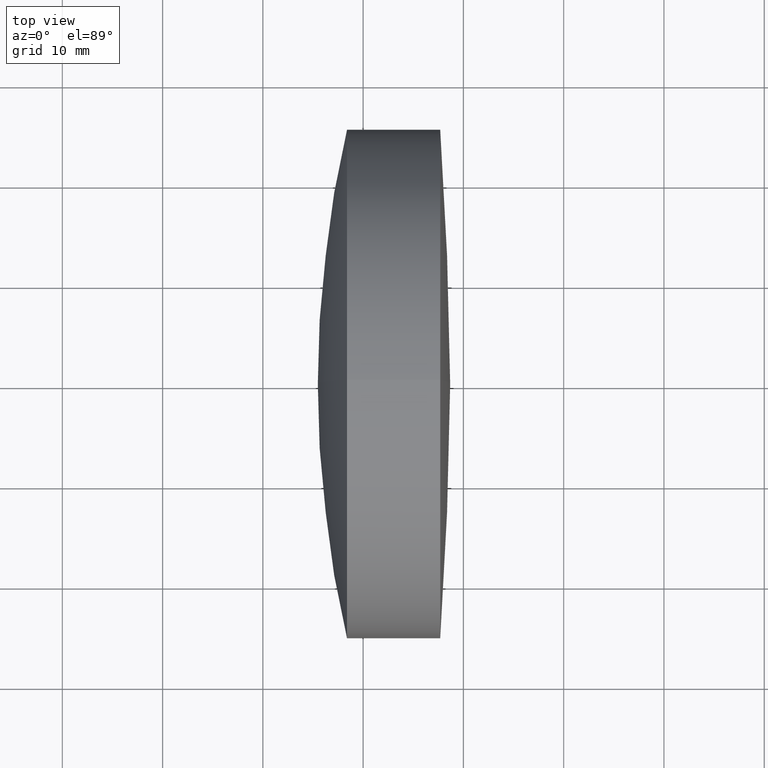
[diagram: clean part render]
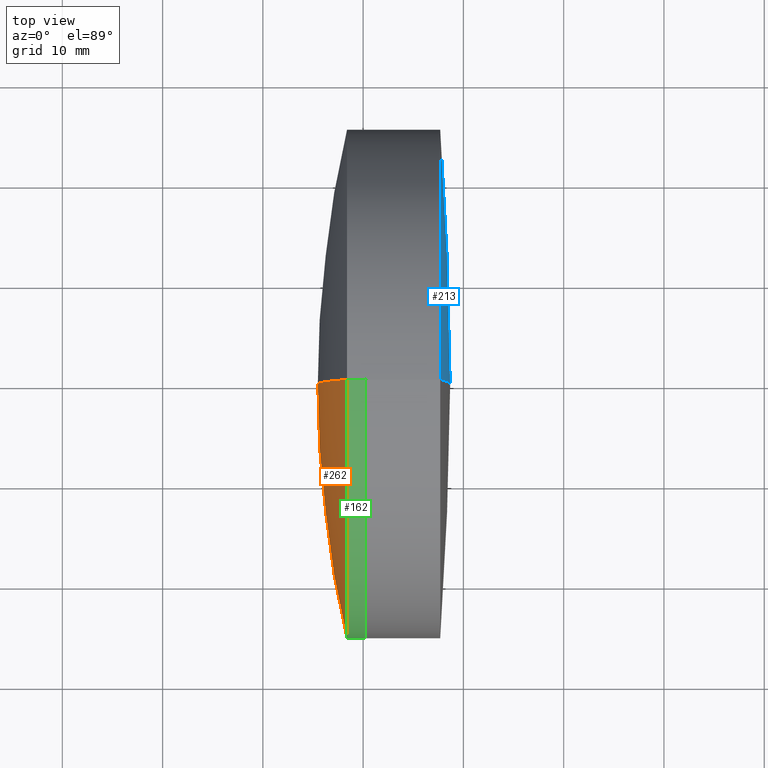
[diagram: same view with three faces highlighted in distinct colors, each labeled with its STEP entity id]
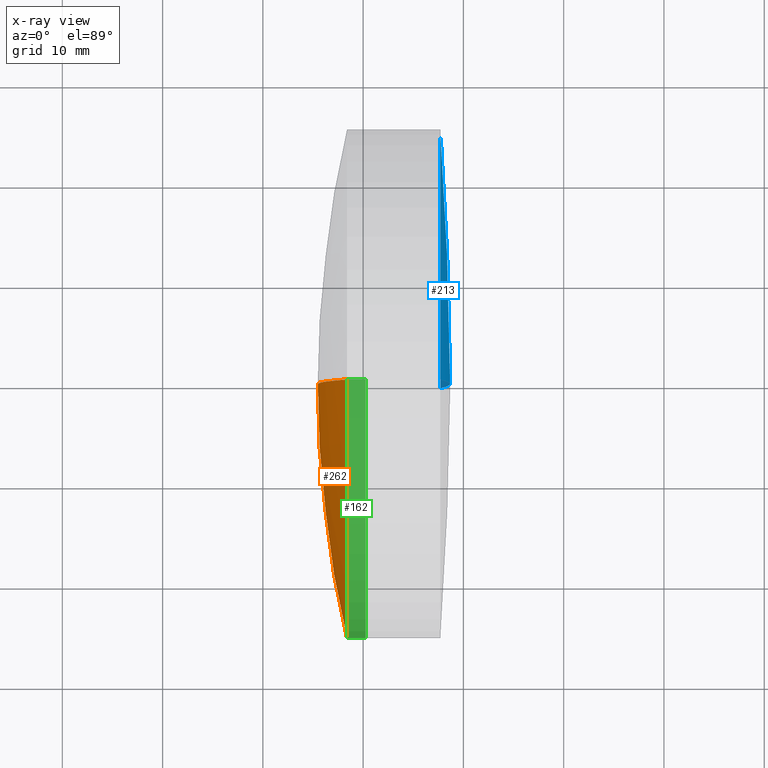
[diagram: x-ray of the same camera — body ghosted, the three highlighted faces saturated]
A machine part, top view with three faces highlighted in distinct colors.
The next image is the same camera in x-ray (body ghosted, the three faces saturated) — at least one of them is partly hidden behind the body in this view.
Their STEP definitions:

[orange] entity #262 — the highlighted spherical surface has radius 112.2 mm.
#7 = CARTESIAN_POINT ( 'NONE',  ( 657.6805592743230600, 0.0000000000000000000, -8.998188785850827300E-015 ) ) ;
#15 = EDGE_CURVE ( 'NONE', #117, #81, #157, .T. ) ;
#22 = CARTESIAN_POINT ( 'NONE',  ( 545.4805592743229000, 0.0000000000000000000, -2.127920242634172300E-015 ) ) ;
#29 = DIRECTION ( 'NONE',  ( 0.0000000000000000000, -1.224646799147353500E-016, 1.000000000000000000 ) ) ;
#33 = AXIS2_PLACEMENT_3D ( 'NONE', #315, #67, #263 ) ;
#37 = ORIENTED_EDGE ( 'NONE', *, *, #207, .F. ) ;
#40 = CARTESIAN_POINT ( 'NONE',  ( 548.3934145591277900, 0.0000000000000000000, 0.0000000000000000000 ) ) ;
#49 = VERTEX_POINT ( 'NONE', #22 ) ;
#67 = DIRECTION ( 'NONE',  ( 0.0000000000000000000, 1.000000000000000000, 0.0000000000000000000 ) ) ;
#71 = FACE_OUTER_BOUND ( 'NONE', #209, .T. ) ;
#73 = ORIENTED_EDGE ( 'NONE', *, *, #205, .T. ) ;
#74 = AXIS2_PLACEMENT_3D ( 'NONE', #85, #299, #29 ) ;
#81 = VERTEX_POINT ( 'NONE', #226 ) ;
#85 = CARTESIAN_POINT ( 'NONE',  ( 657.6805592743230600, 0.0000000000000000000, -8.998188785850827300E-015 ) ) ;
#92 = CIRCLE ( 'NONE', #74, 112.2000000000000600 ) ;
#117 = VERTEX_POINT ( 'NONE', #258 ) ;
#157 = CIRCLE ( 'NONE', #264, 25.39999999999998800 ) ;
#161 = SPHERICAL_SURFACE ( 'NONE', #33, 112.2000000000000600 ) ;
#182 = DIRECTION ( 'NONE',  ( 0.0000000000000000000, -1.000000000000000000, 0.0000000000000000000 ) ) ;
#190 = ORIENTED_EDGE ( 'NONE', *, *, #15, .T. ) ;
#205 = EDGE_CURVE ( 'NONE', #81, #49, #329, .T. ) ;
#207 = EDGE_CURVE ( 'NONE', #117, #49, #92, .T. ) ;
#209 = EDGE_LOOP ( 'NONE', ( #37, #190, #73 ) ) ;
#219 = DIRECTION ( 'NONE',  ( -1.000000000000000000, -0.0000000000000000000, -0.0000000000000000000 ) ) ;
#226 = CARTESIAN_POINT ( 'NONE',  ( 548.3934145591277900, 0.0000000000000000000, 25.39999999999999100 ) ) ;
#258 = CARTESIAN_POINT ( 'NONE',  ( 548.3934145591277900, 3.110602869834276500E-015, -25.40000000000000600 ) ) ;
#261 = DIRECTION ( 'NONE',  ( 0.0000000000000000000, 0.0000000000000000000, 1.000000000000000000 ) ) ;
#262 = ADVANCED_FACE ( 'NONE', ( #71 ), #161, .T. ) ;
#263 = DIRECTION ( 'NONE',  ( 0.0000000000000000000, 0.0000000000000000000, 1.000000000000000000 ) ) ;
#264 = AXIS2_PLACEMENT_3D ( 'NONE', #40, #219, #261 ) ;
#299 = DIRECTION ( 'NONE',  ( -0.0000000000000000000, 1.000000000000000000, 1.224646799147353200E-016 ) ) ;
#313 = AXIS2_PLACEMENT_3D ( 'NONE', #7, #182, #332 ) ;
#315 = CARTESIAN_POINT ( 'NONE',  ( 657.6805592743230600, 0.0000000000000000000, -8.998188785850827300E-015 ) ) ;
#329 = CIRCLE ( 'NONE', #313, 112.2000000000000600 ) ;
#332 = DIRECTION ( 'NONE',  ( 0.0000000000000000000, 0.0000000000000000000, -1.000000000000000000 ) ) ;

[blue] entity #213 — the highlighted spherical surface has radius 325.1 mm.
#11 = SPHERICAL_SURFACE ( 'NONE', #189, 325.1000000000000200 ) ;
#16 = CIRCLE ( 'NONE', #130, 325.1000000000000200 ) ;
#41 = AXIS2_PLACEMENT_3D ( 'NONE', #281, #159, #119 ) ;
#43 = DIRECTION ( 'NONE',  ( 0.0000000000000000000, -1.000000000000000000, 0.0000000000000000000 ) ) ;
#53 = CARTESIAN_POINT ( 'NONE',  ( 557.6867918586409600, 0.0000000000000000000, 25.39999999999997000 ) ) ;
#54 = CARTESIAN_POINT ( 'NONE',  ( 557.6867918586409600, 3.110602869834276100E-015, -25.39999999999997000 ) ) ;
#58 = DIRECTION ( 'NONE',  ( -1.000000000000000000, -0.0000000000000000000, -0.0000000000000000000 ) ) ;
#63 = EDGE_CURVE ( 'NONE', #174, #287, #215, .T. ) ;
#65 = DIRECTION ( 'NONE',  ( 0.0000000000000000000, 0.0000000000000000000, 1.000000000000000000 ) ) ;
#86 = EDGE_CURVE ( 'NONE', #300, #287, #177, .T. ) ;
#89 = EDGE_CURVE ( 'NONE', #174, #300, #16, .T. ) ;
#98 = CARTESIAN_POINT ( 'NONE',  ( 557.6867918586409600, 0.0000000000000000000, 0.0000000000000000000 ) ) ;
#104 = DIRECTION ( 'NONE',  ( 0.0000000000000000000, 0.0000000000000000000, 1.000000000000000000 ) ) ;
#119 = DIRECTION ( 'NONE',  ( 0.0000000000000000000, -1.224646799147353000E-016, 1.000000000000000000 ) ) ;
#130 = AXIS2_PLACEMENT_3D ( 'NONE', #214, #43, #303 ) ;
#133 = CARTESIAN_POINT ( 'NONE',  ( 558.6805592743230600, 0.0000000000000000000, 1.990663372014022500E-014 ) ) ;
#138 = ORIENTED_EDGE ( 'NONE', *, *, #86, .F. ) ;
#146 = DIRECTION ( 'NONE',  ( 0.0000000000000000000, 1.000000000000000000, 0.0000000000000000000 ) ) ;
#159 = DIRECTION ( 'NONE',  ( -0.0000000000000000000, 1.000000000000000000, 1.224646799147353200E-016 ) ) ;
#163 = ORIENTED_EDGE ( 'NONE', *, *, #63, .T. ) ;
#174 = VERTEX_POINT ( 'NONE', #133 ) ;
#177 = CIRCLE ( 'NONE', #252, 25.39999999999997000 ) ;
#178 = ORIENTED_EDGE ( 'NONE', *, *, #89, .F. ) ;
#189 = AXIS2_PLACEMENT_3D ( 'NONE', #275, #146, #65 ) ;
#212 = FACE_OUTER_BOUND ( 'NONE', #270, .T. ) ;
#213 = ADVANCED_FACE ( 'NONE', ( #212 ), #11, .T. ) ;
#214 = CARTESIAN_POINT ( 'NONE',  ( 233.5805592743230400, 0.0000000000000000000, 0.0000000000000000000 ) ) ;
#215 = CIRCLE ( 'NONE', #41, 325.1000000000000200 ) ;
#252 = AXIS2_PLACEMENT_3D ( 'NONE', #98, #58, #104 ) ;
#270 = EDGE_LOOP ( 'NONE', ( #178, #163, #138 ) ) ;
#275 = CARTESIAN_POINT ( 'NONE',  ( 233.5805592743230400, 0.0000000000000000000, 0.0000000000000000000 ) ) ;
#281 = CARTESIAN_POINT ( 'NONE',  ( 233.5805592743230400, 0.0000000000000000000, 0.0000000000000000000 ) ) ;
#287 = VERTEX_POINT ( 'NONE', #54 ) ;
#300 = VERTEX_POINT ( 'NONE', #53 ) ;
#303 = DIRECTION ( 'NONE',  ( 0.0000000000000000000, 0.0000000000000000000, -1.000000000000000000 ) ) ;

[green] entity #162 — the highlighted cylindrical surface (partial cylindrical patch) has radius 25.4 mm, axis along (-1, -0, -0).
#3 = CARTESIAN_POINT ( 'NONE',  ( 124.5233095260452400, 3.110602869834276100E-015, -25.39999999999999100 ) ) ;
#15 = EDGE_CURVE ( 'NONE', #117, #81, #157, .T. ) ;
#17 = EDGE_CURVE ( 'NONE', #113, #260, #328, .T. ) ;
#19 = AXIS2_PLACEMENT_3D ( 'NONE', #141, #326, #327 ) ;
#36 = VECTOR ( 'NONE', #149, 1000.000000000000000 ) ;
#40 = CARTESIAN_POINT ( 'NONE',  ( 548.3934145591277900, 0.0000000000000000000, 0.0000000000000000000 ) ) ;
#60 = LINE ( 'NONE', #3, #273 ) ;
#69 = CARTESIAN_POINT ( 'NONE',  ( 550.2556910666054400, 3.110602869834276100E-015, -25.39999999999999100 ) ) ;
#81 = VERTEX_POINT ( 'NONE', #226 ) ;
#88 = EDGE_LOOP ( 'NONE', ( #330, #122, #308, #225 ) ) ;
#113 = VERTEX_POINT ( 'NONE', #69 ) ;
#117 = VERTEX_POINT ( 'NONE', #258 ) ;
#122 = ORIENTED_EDGE ( 'NONE', *, *, #17, .T. ) ;
#141 = CARTESIAN_POINT ( 'NONE',  ( 550.2556910666054400, 0.0000000000000000000, 0.0000000000000000000 ) ) ;
#149 = DIRECTION ( 'NONE',  ( -1.000000000000000000, -0.0000000000000000000, -0.0000000000000000000 ) ) ;
#150 = LINE ( 'NONE', #305, #36 ) ;
#157 = CIRCLE ( 'NONE', #264, 25.39999999999998800 ) ;
#162 = ADVANCED_FACE ( 'NONE', ( #302 ), #222, .T. ) ;
#172 = DIRECTION ( 'NONE',  ( -1.000000000000000000, -0.0000000000000000000, -0.0000000000000000000 ) ) ;
#179 = EDGE_CURVE ( 'NONE', #113, #117, #60, .T. ) ;
#198 = EDGE_CURVE ( 'NONE', #260, #81, #150, .T. ) ;
#211 = CARTESIAN_POINT ( 'NONE',  ( 550.2556910666054400, 0.0000000000000000000, 25.39999999999999100 ) ) ;
#219 = DIRECTION ( 'NONE',  ( -1.000000000000000000, -0.0000000000000000000, -0.0000000000000000000 ) ) ;
#222 = CYLINDRICAL_SURFACE ( 'NONE', #285, 25.39999999999999100 ) ;
#225 = ORIENTED_EDGE ( 'NONE', *, *, #15, .F. ) ;
#226 = CARTESIAN_POINT ( 'NONE',  ( 548.3934145591277900, 0.0000000000000000000, 25.39999999999999100 ) ) ;
#247 = DIRECTION ( 'NONE',  ( -1.000000000000000000, -0.0000000000000000000, -0.0000000000000000000 ) ) ;
#258 = CARTESIAN_POINT ( 'NONE',  ( 548.3934145591277900, 3.110602869834276500E-015, -25.40000000000000600 ) ) ;
#260 = VERTEX_POINT ( 'NONE', #211 ) ;
#261 = DIRECTION ( 'NONE',  ( 0.0000000000000000000, 0.0000000000000000000, 1.000000000000000000 ) ) ;
#264 = AXIS2_PLACEMENT_3D ( 'NONE', #40, #219, #261 ) ;
#273 = VECTOR ( 'NONE', #172, 1000.000000000000000 ) ;
#285 = AXIS2_PLACEMENT_3D ( 'NONE', #321, #247, #341 ) ;
#302 = FACE_OUTER_BOUND ( 'NONE', #88, .T. ) ;
#305 = CARTESIAN_POINT ( 'NONE',  ( 124.5233095260452400, 0.0000000000000000000, 25.39999999999999100 ) ) ;
#308 = ORIENTED_EDGE ( 'NONE', *, *, #198, .T. ) ;
#321 = CARTESIAN_POINT ( 'NONE',  ( 124.5233095260452400, 0.0000000000000000000, 0.0000000000000000000 ) ) ;
#326 = DIRECTION ( 'NONE',  ( -1.000000000000000000, -0.0000000000000000000, -0.0000000000000000000 ) ) ;
#327 = DIRECTION ( 'NONE',  ( 0.0000000000000000000, 0.0000000000000000000, 1.000000000000000000 ) ) ;
#328 = CIRCLE ( 'NONE', #19, 25.39999999999999100 ) ;
#330 = ORIENTED_EDGE ( 'NONE', *, *, #179, .F. ) ;
#341 = DIRECTION ( 'NONE',  ( 0.0000000000000000000, 0.0000000000000000000, 1.000000000000000000 ) ) ;